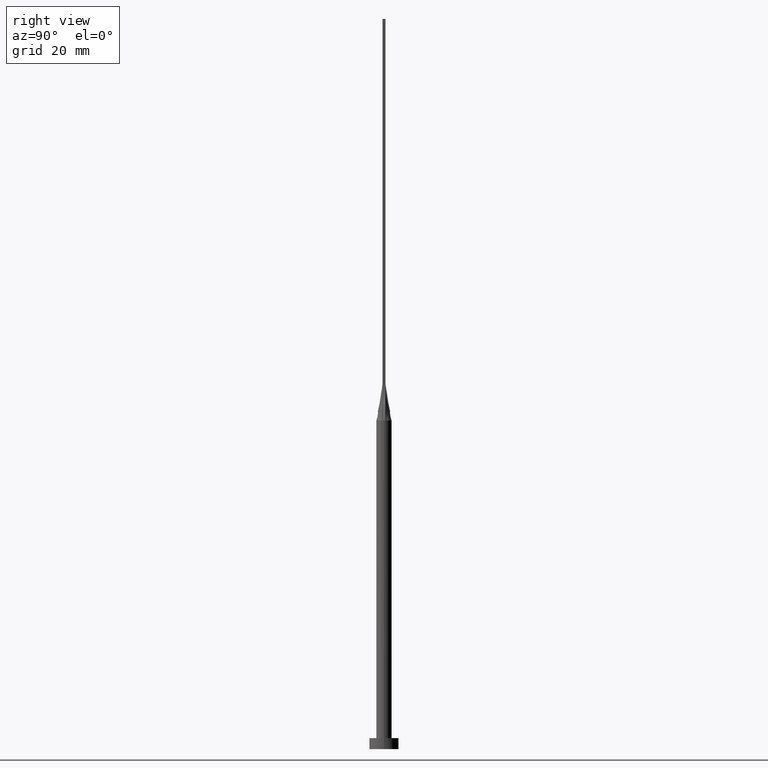
[diagram: clean part render]
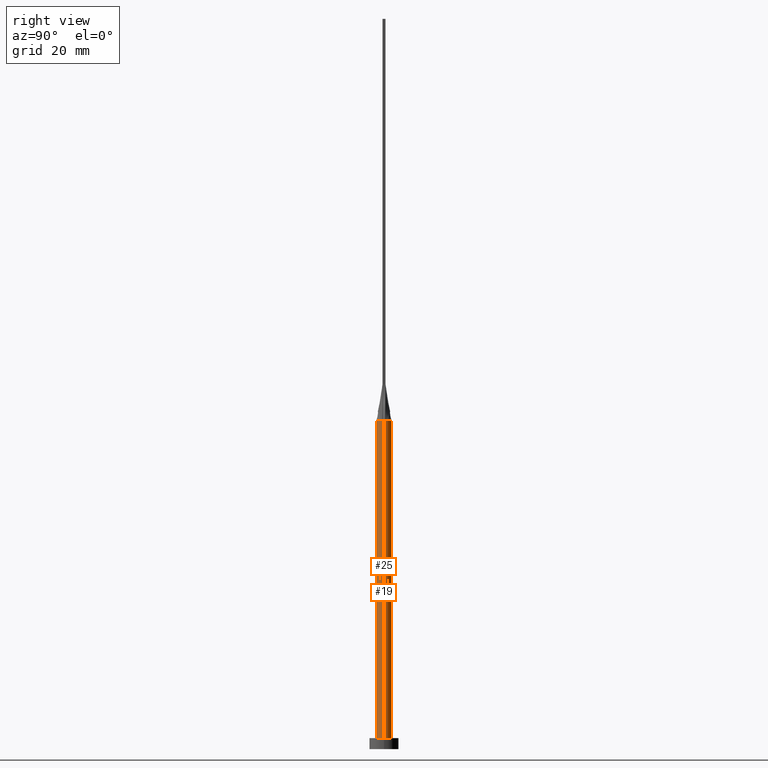
[diagram: same view with one multi-face feature highlighted, each face labeled with its STEP entity id]
A machine part, right view. The highlighted faces form ONE feature: a constant-radius fillet chain: 2 tangent blend faces with common blend radius 2.1 mm. The faces share edges in the B-rep.
Their STEP definitions:
[1] entity #19 (Cylinder):
#3 = EDGE_LOOP ( 'NONE', ( #247, #113, #163, #246, #300, #71 ) ) ;
#12 = DIRECTION ( 'NONE',  ( 0.000000000000000000, 0.000000000000000000, 1.000000000000000000 ) ) ;
#13 = VERTEX_POINT ( 'NONE', #225 ) ;
#19 = ADVANCED_FACE ( 'NONE', ( #60 ), #510, .T. ) ;
#22 = AXIS2_PLACEMENT_3D ( 'NONE', #101, #279, #541 ) ;
#35 = EDGE_CURVE ( 'NONE', #393, #400, #97, .T. ) ;
#42 = EDGE_CURVE ( 'NONE', #393, #345, #507, .T. ) ;
#60 = FACE_OUTER_BOUND ( 'NONE', #3, .T. ) ;
#71 = ORIENTED_EDGE ( 'NONE', *, *, #417, .F. ) ;
#75 = CARTESIAN_POINT ( 'NONE',  ( 2.100000000000000089, 2.571758278209441957E-16, 3.000000000000000000 ) ) ;
#83 = EDGE_CURVE ( 'NONE', #400, #474, #473, .T. ) ;
#88 = DIRECTION ( 'NONE',  ( 1.000000000000000000, 0.000000000000000000, 0.000000000000000000 ) ) ;
#90 = CARTESIAN_POINT ( 'NONE',  ( 2.100000000000000089, 2.571758278209441957E-16, 90.00000000000000000 ) ) ;
#97 = LINE ( 'NONE', #90, #271 ) ;
#101 = CARTESIAN_POINT ( 'NONE',  ( 0.000000000000000000, 0.000000000000000000, 90.00000000000000000 ) ) ;
#105 = CARTESIAN_POINT ( 'NONE',  ( -2.055148177435248691, 0.4326628259079252081, 90.00000000000000000 ) ) ;
#113 = ORIENTED_EDGE ( 'NONE', *, *, #35, .T. ) ;
#125 = VERTEX_POINT ( 'NONE', #319 ) ;
#154 = VECTOR ( 'NONE', #204, 1000.000000000000000 ) ;
#155 = CARTESIAN_POINT ( 'NONE',  ( -2.100000000000000089, 0.000000000000000000, 90.00000000000000000 ) ) ;
#163 = ORIENTED_EDGE ( 'NONE', *, *, #83, .T. ) ;
#168 = CARTESIAN_POINT ( 'NONE',  ( 1.960396204527856900, 0.7808940436533436946, 90.00000000000001421 ) ) ;
#176 = CARTESIAN_POINT ( 'NONE',  ( -0.2839879338753505955, 2.100000000000000533, 89.99999999999997158 ) ) ;
#177 = CARTESIAN_POINT ( 'NONE',  ( -2.019676033883313959, 0.6001949545017503107, 90.00000000000000000 ) ) ;
#187 = CARTESIAN_POINT ( 'NONE',  ( 2.055132260641998609, 0.4326595789354660826, 90.00000000000000000 ) ) ;
#204 = DIRECTION ( 'NONE',  ( -0.000000000000000000, -0.000000000000000000, -1.000000000000000000 ) ) ;
#222 = CARTESIAN_POINT ( 'NONE',  ( -1.069497409764671003, 1.827724181718571872, 89.99999999999998579 ) ) ;
#225 = CARTESIAN_POINT ( 'NONE',  ( -2.099758441344840243, -1.448674240509545331E-15, 90.00000000000000000 ) ) ;
#237 = DIRECTION ( 'NONE',  ( -0.000000000000000000, -0.000000000000000000, -1.000000000000000000 ) ) ;
#246 = ORIENTED_EDGE ( 'NONE', *, *, #424, .F. ) ;
#247 = ORIENTED_EDGE ( 'NONE', *, *, #42, .F. ) ;
#255 = CARTESIAN_POINT ( 'NONE',  ( 0.2839879338753505955, 2.100000000000000533, 90.00000000000000000 ) ) ;
#259 = CARTESIAN_POINT ( 'NONE',  ( 1.769939800381044259, 1.149026496286139620, 89.99999999999997158 ) ) ;
#267 = DIRECTION ( 'NONE',  ( 1.000000000000000000, 0.000000000000000000, 0.000000000000000000 ) ) ;
#271 = VECTOR ( 'NONE', #237, 1000.000000000000000 ) ;
#274 = EDGE_CURVE ( 'NONE', #125, #13, #367, .T. ) ;
#276 = CARTESIAN_POINT ( 'NONE',  ( 0.000000000000000000, 0.000000000000000000, 90.00000000000000000 ) ) ;
#279 = DIRECTION ( 'NONE',  ( -0.000000000000000000, -0.000000000000000000, -1.000000000000000000 ) ) ;
#294 = CARTESIAN_POINT ( 'NONE',  ( 1.288188016604684183, 1.676316068528189041, 90.00000000000004263 ) ) ;
#300 = ORIENTED_EDGE ( 'NONE', *, *, #274, .F. ) ;
#319 = CARTESIAN_POINT ( 'NONE',  ( -2.055148177435248691, 0.4326628259079252081, 90.00000000000000000 ) ) ;
#329 = DIRECTION ( 'NONE',  ( 0.000000000000000000, 0.000000000000000000, 1.000000000000000000 ) ) ;
#345 = VERTEX_POINT ( 'NONE', #187 ) ;
#348 = CARTESIAN_POINT ( 'NONE',  ( 1.069497409764671003, 1.827724181718572538, 90.00000000000001421 ) ) ;
#352 = CARTESIAN_POINT ( 'NONE',  ( -1.769939800381045147, 1.149026496286139842, 90.00000000000002842 ) ) ;
#355 = AXIS2_PLACEMENT_3D ( 'NONE', #276, #329, #88 ) ;
#357 = CARTESIAN_POINT ( 'NONE',  ( -1.960396204527856456, 0.7808940436533434726, 90.00000000000004263 ) ) ;
#367 = CIRCLE ( 'NONE', #567, 2.100000000000000089 ) ;
#369 = CARTESIAN_POINT ( 'NONE',  ( 0.000000000000000000, 0.000000000000000000, 90.00000000000000000 ) ) ;
#391 = LINE ( 'NONE', #155, #154 ) ;
#393 = VERTEX_POINT ( 'NONE', #478 ) ;
#400 = VERTEX_POINT ( 'NONE', #75 ) ;
#401 = CARTESIAN_POINT ( 'NONE',  ( 1.638039177766652754, 1.336522195786985057, 90.00000000000002842 ) ) ;
#406 = CARTESIAN_POINT ( 'NONE',  ( -1.288188016604684183, 1.676316068528189263, 90.00000000000002842 ) ) ;
#417 = EDGE_CURVE ( 'NONE', #345, #125, #538, .T. ) ;
#420 = CARTESIAN_POINT ( 'NONE',  ( 0.000000000000000000, 0.000000000000000000, 3.000000000000000000 ) ) ;
#424 = EDGE_CURVE ( 'NONE', #13, #474, #391, .T. ) ;
#430 = AXIS2_PLACEMENT_3D ( 'NONE', #420, #12, #550 ) ;
#442 = CARTESIAN_POINT ( 'NONE',  ( -1.638039177766652976, 1.336522195786985057, 90.00000000000004263 ) ) ;
#445 = CARTESIAN_POINT ( 'NONE',  ( 0.5670887265440297531, 2.040296735810463780, 90.00000000000002842 ) ) ;
#473 = CIRCLE ( 'NONE', #430, 2.100000000000000089 ) ;
#474 = VERTEX_POINT ( 'NONE', #564 ) ;
#478 = CARTESIAN_POINT ( 'NONE',  ( 2.099758441344840243, 4.928843353830161703E-16, 90.00000000000000000 ) ) ;
#507 = CIRCLE ( 'NONE', #355, 2.100000000000000089 ) ;
#510 = CYLINDRICAL_SURFACE ( 'NONE', #22, 2.100000000000000089 ) ;
#538 = B_SPLINE_CURVE_WITH_KNOTS ( 'NONE', 3,
 ( #576, #572, #168, #259, #401, #294, #348, #445, #255, #176, #573, #222, #406, #442, #352, #357, #177, #105 ),
 .UNSPECIFIED., .F., .F.,
 ( 4, 2, 2, 2, 2, 2, 2, 2, 4 ),
 ( 0.000000000000000000, 0.1250000000000000000, 0.2500000000000000000, 0.3750000000000000000, 0.5000000000000000000, 0.6250000000000000000, 0.7500000000000000000, 0.8750000000000000000, 1.000000000000000000 ),
 .UNSPECIFIED. ) ;
#540 = DIRECTION ( 'NONE',  ( 0.000000000000000000, 0.000000000000000000, 1.000000000000000000 ) ) ;
#541 = DIRECTION ( 'NONE',  ( -1.000000000000000000, 0.000000000000000000, 0.000000000000000000 ) ) ;
#550 = DIRECTION ( 'NONE',  ( 1.000000000000000000, 0.000000000000000000, 0.000000000000000000 ) ) ;
#564 = CARTESIAN_POINT ( 'NONE',  ( -2.100000000000000089, 0.000000000000000000, 3.000000000000000000 ) ) ;
#567 = AXIS2_PLACEMENT_3D ( 'NONE', #369, #540, #267 ) ;
#572 = CARTESIAN_POINT ( 'NONE',  ( 2.019676033883313515, 0.6001949545017501997, 90.00000000000001421 ) ) ;
#573 = CARTESIAN_POINT ( 'NONE',  ( -0.5670887265440298641, 2.040296735810464668, 90.00000000000002842 ) ) ;
#576 = CARTESIAN_POINT ( 'NONE',  ( 2.055132260641998609, 0.4326595789354660826, 90.00000000000000000 ) ) ;
[2] entity #25 (Cylinder):
#5 = DIRECTION ( 'NONE',  ( 1.000000000000000000, 0.000000000000000000, 0.000000000000000000 ) ) ;
#8 = CARTESIAN_POINT ( 'NONE',  ( 0.000000000000000000, 0.000000000000000000, 90.00000000000000000 ) ) ;
#10 = DIRECTION ( 'NONE',  ( 0.000000000000000000, 0.000000000000000000, 1.000000000000000000 ) ) ;
#13 = VERTEX_POINT ( 'NONE', #225 ) ;
#18 = DIRECTION ( 'NONE',  ( -1.000000000000000000, 0.000000000000000000, 0.000000000000000000 ) ) ;
#25 = ADVANCED_FACE ( 'NONE', ( #465 ), #144, .T. ) ;
#35 = EDGE_CURVE ( 'NONE', #393, #400, #97, .T. ) ;
#43 = EDGE_LOOP ( 'NONE', ( #142, #511, #224, #570, #463, #562 ) ) ;
#58 = CIRCLE ( 'NONE', #390, 2.100000000000000089 ) ;
#69 = CARTESIAN_POINT ( 'NONE',  ( -2.055145036631130129, -0.4326623253166036465, 90.00000000000000000 ) ) ;
#75 = CARTESIAN_POINT ( 'NONE',  ( 2.100000000000000089, 2.571758278209441957E-16, 3.000000000000000000 ) ) ;
#84 = CIRCLE ( 'NONE', #311, 2.100000000000000089 ) ;
#86 = DIRECTION ( 'NONE',  ( 1.000000000000000000, 0.000000000000000000, 0.000000000000000000 ) ) ;
#90 = CARTESIAN_POINT ( 'NONE',  ( 2.100000000000000089, 2.571758278209441957E-16, 90.00000000000000000 ) ) ;
#93 = DIRECTION ( 'NONE',  ( 1.000000000000000000, 0.000000000000000000, 0.000000000000000000 ) ) ;
#97 = LINE ( 'NONE', #90, #271 ) ;
#131 = AXIS2_PLACEMENT_3D ( 'NONE', #534, #227, #93 ) ;
#133 = DIRECTION ( 'NONE',  ( 0.000000000000000000, 0.000000000000000000, 1.000000000000000000 ) ) ;
#142 = ORIENTED_EDGE ( 'NONE', *, *, #35, .F. ) ;
#144 = CYLINDRICAL_SURFACE ( 'NONE', #457, 2.100000000000000089 ) ;
#147 = DIRECTION ( 'NONE',  ( 1.000000000000000000, -8.881784197001252323E-16, 0.000000000000000000 ) ) ;
#154 = VECTOR ( 'NONE', #204, 1000.000000000000000 ) ;
#155 = CARTESIAN_POINT ( 'NONE',  ( -2.100000000000000089, 0.000000000000000000, 90.00000000000000000 ) ) ;
#183 = CIRCLE ( 'NONE', #535, 2.100000000000000089 ) ;
#186 = EDGE_CURVE ( 'NONE', #379, #393, #183, .T. ) ;
#204 = DIRECTION ( 'NONE',  ( -0.000000000000000000, -0.000000000000000000, -1.000000000000000000 ) ) ;
#208 = CIRCLE ( 'NONE', #131, 2.100000000000000089 ) ;
#224 = ORIENTED_EDGE ( 'NONE', *, *, #336, .F. ) ;
#225 = CARTESIAN_POINT ( 'NONE',  ( -2.099758441344840243, -1.448674240509545331E-15, 90.00000000000000000 ) ) ;
#227 = DIRECTION ( 'NONE',  ( 0.000000000000000000, 0.000000000000000000, 1.000000000000000000 ) ) ;
#232 = CARTESIAN_POINT ( 'NONE',  ( 0.000000000000000000, 0.000000000000000000, 90.00000000000000000 ) ) ;
#237 = DIRECTION ( 'NONE',  ( -0.000000000000000000, -0.000000000000000000, -1.000000000000000000 ) ) ;
#271 = VECTOR ( 'NONE', #237, 1000.000000000000000 ) ;
#311 = AXIS2_PLACEMENT_3D ( 'NONE', #8, #133, #86 ) ;
#314 = CARTESIAN_POINT ( 'NONE',  ( 2.055161022591414977, -0.4326655822303633325, 90.00000000000000000 ) ) ;
#331 = EDGE_CURVE ( 'NONE', #13, #434, #84, .T. ) ;
#336 = EDGE_CURVE ( 'NONE', #434, #379, #58, .T. ) ;
#351 = EDGE_CURVE ( 'NONE', #474, #400, #208, .T. ) ;
#376 = DIRECTION ( 'NONE',  ( -0.000000000000000000, -0.000000000000000000, -1.000000000000000000 ) ) ;
#379 = VERTEX_POINT ( 'NONE', #314 ) ;
#390 = AXIS2_PLACEMENT_3D ( 'NONE', #542, #448, #5 ) ;
#391 = LINE ( 'NONE', #155, #154 ) ;
#393 = VERTEX_POINT ( 'NONE', #478 ) ;
#400 = VERTEX_POINT ( 'NONE', #75 ) ;
#424 = EDGE_CURVE ( 'NONE', #13, #474, #391, .T. ) ;
#425 = CARTESIAN_POINT ( 'NONE',  ( 0.000000000000000000, 0.000000000000000000, 90.00000000000000000 ) ) ;
#434 = VERTEX_POINT ( 'NONE', #69 ) ;
#448 = DIRECTION ( 'NONE',  ( 0.000000000000000000, 0.000000000000000000, 1.000000000000000000 ) ) ;
#457 = AXIS2_PLACEMENT_3D ( 'NONE', #425, #376, #18 ) ;
#463 = ORIENTED_EDGE ( 'NONE', *, *, #424, .T. ) ;
#465 = FACE_OUTER_BOUND ( 'NONE', #43, .T. ) ;
#474 = VERTEX_POINT ( 'NONE', #564 ) ;
#478 = CARTESIAN_POINT ( 'NONE',  ( 2.099758441344840243, 4.928843353830161703E-16, 90.00000000000000000 ) ) ;
#511 = ORIENTED_EDGE ( 'NONE', *, *, #186, .F. ) ;
#534 = CARTESIAN_POINT ( 'NONE',  ( 0.000000000000000000, 0.000000000000000000, 3.000000000000000000 ) ) ;
#535 = AXIS2_PLACEMENT_3D ( 'NONE', #232, #10, #147 ) ;
#542 = CARTESIAN_POINT ( 'NONE',  ( 0.000000000000000000, 0.000000000000000000, 90.00000000000000000 ) ) ;
#562 = ORIENTED_EDGE ( 'NONE', *, *, #351, .T. ) ;
#564 = CARTESIAN_POINT ( 'NONE',  ( -2.100000000000000089, 0.000000000000000000, 3.000000000000000000 ) ) ;
#570 = ORIENTED_EDGE ( 'NONE', *, *, #331, .F. ) ;